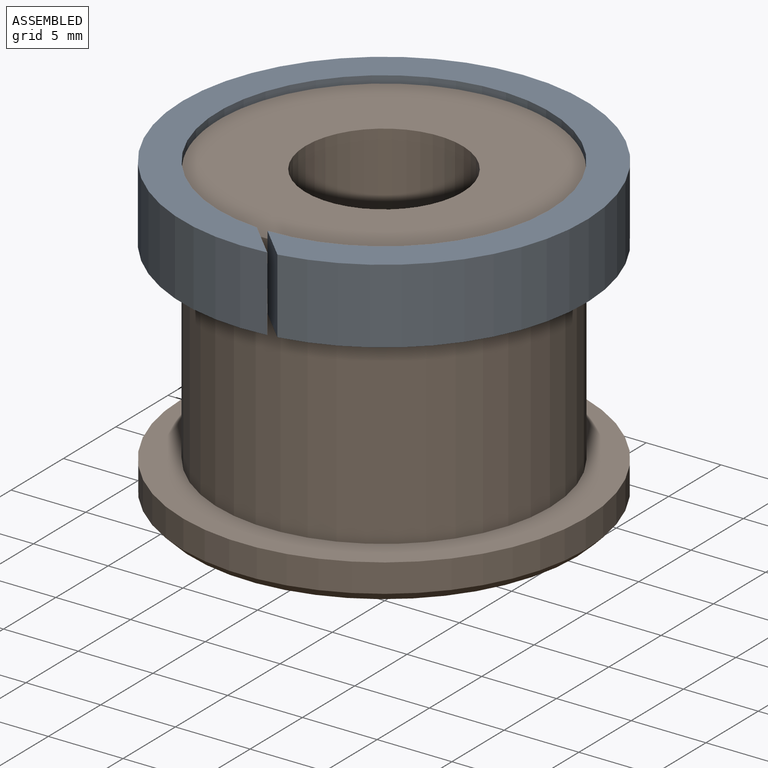
[diagram: assembled view]
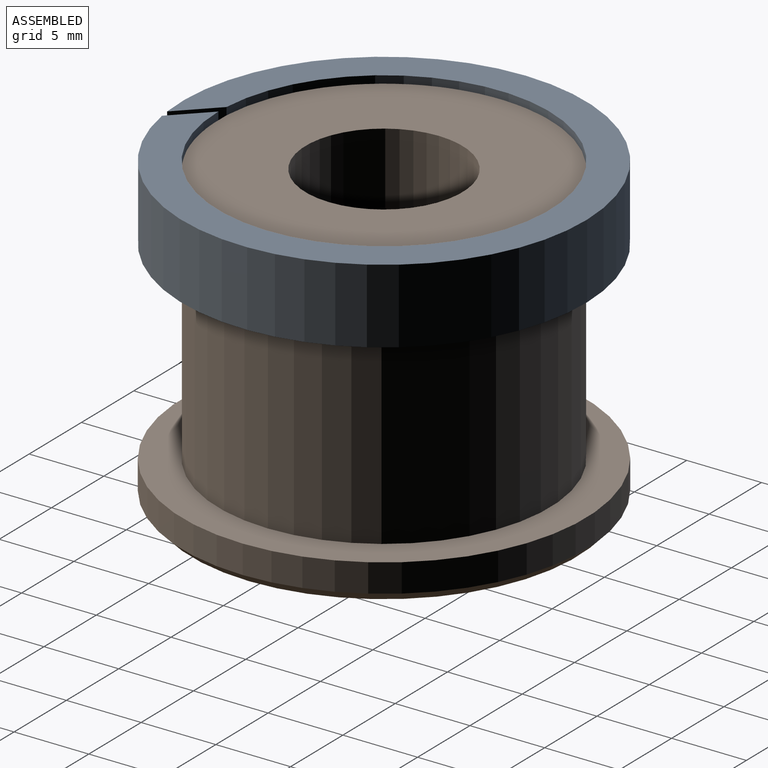
[diagram: assembled view, second angle]
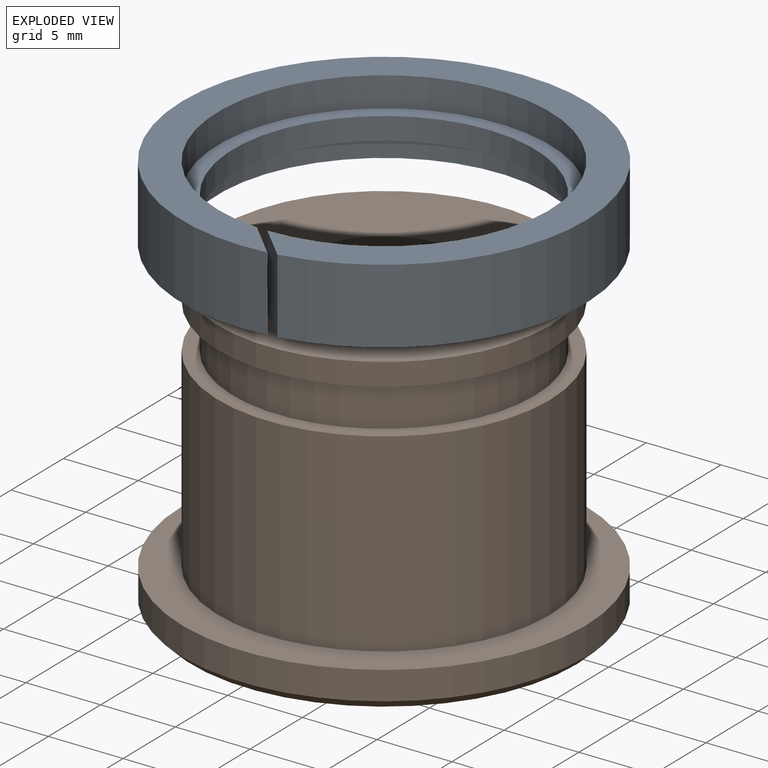
[diagram: exploded view]
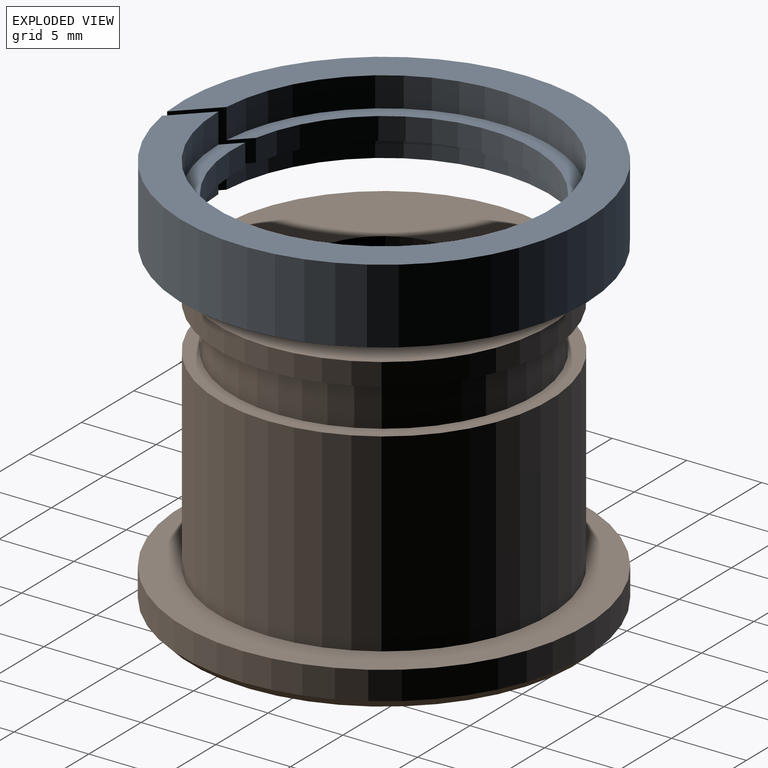
[diagram: exploded view, second angle]
ASSEMBLY  parts=2 mates=2
PART A: 10 faces, bbox 27x27x5 mm
  f0: cylinder r=11.1mm len=22.2mm, axis (0,0,-1), area 103.5mm2, adj f4,f6,f8,f9
  f1: cylinder r=11.1mm len=22.2mm, axis (0,0,-1), area 138mm2, adj f3,f7,f8,f9
  f2: cylinder r=13.5mm len=27mm, axis (0,0,-1), area 421mm2, adj f3,f4,f8,f9
  f3: plane 27x27mm, normal (0,0,1), area 183.9mm2, adj f1,f2,f8,f9
  f4: plane 27x27mm, normal (0,0,-1), area 183.9mm2, adj f0,f2,f8,f9
  f5: cylinder r=10.1mm len=20.2mm, axis (0,0,1), area 93.9mm2, adj f6,f7,f8,f9
  f6: plane 22.2x22.2mm, normal (0,0,-1), area 65.8mm2, adj f0,f5,f8,f9
  f7: plane 22.2x22.2mm, normal (0,0,1), area 65.8mm2, adj f1,f5,f8,f9
  f8: plane 5x3.49mm, normal (-0.71,-0.71,0), area 19mm2, adj f0,f1,f2,f3,f4,f5,f6,f7
  f9: plane 5x3.28mm, normal (0.71,0.71,0), area 17.9mm2, adj f0,f1,f2,f3,f4,f5,f6,f7
PART B: 12 faces, bbox 27x27x20 mm
  f0: cylinder r=11.1mm len=22.2mm, axis (0,0,-1), area 906.7mm2, adj f3,f8
  f1: cylinder r=5.25mm len=19.4mm, axis (0,0,-1), area 639.9mm2, adj f6,f11
  f2: cylinder r=13.5mm len=27mm, axis (0,0,-1), area 161.2mm2, adj f3,f10
  f3: plane 27x27mm, normal (0,0,1), area 185.5mm2, adj f0,f2
  f4: plane 25.8x25.8mm, normal (0,0,-1), area 415.3mm2, adj f10,f11
  f5: cylinder r=11.1mm len=22.2mm, axis (0,0,-1), area 104.6mm2, adj f6,f9
  f6: plane 22.2x22.2mm, normal (0,0,1), area 300.5mm2, adj f1,f5
  f7: cylinder r=10.1mm len=20.2mm, axis (0,0,1), area 190.4mm2, adj f8,f9
  f8: plane 22.2x22.2mm, normal (0,0,1), area 66.6mm2, adj f0,f7
  f9: plane 22.2x22.2mm, normal (0,0,-1), area 66.6mm2, adj f5,f7
  f10: cone r=13.5mm half-angle=45deg, axis (0,0,1), area 70.4mm2, adj f2,f4
  f11: cone r=5.85mm half-angle=45deg, axis (0,0,-1), area 29.6mm2, adj f1,f4
PLACE A rot(axis=(0,0,1),180deg) t=(-28.74,-6.86,11.84)mm
PLACE B t=(-28.74,-6.86,-6.16)mm fixed
MATE planar A.f7 <-> B.f0  axis (0,0,1) through (-28.73,-6.74,12.34)mm
MATE slider A.f0 <-> B.f0  axis (0,0,-1) through (-28.74,-6.86,10.09)mm
